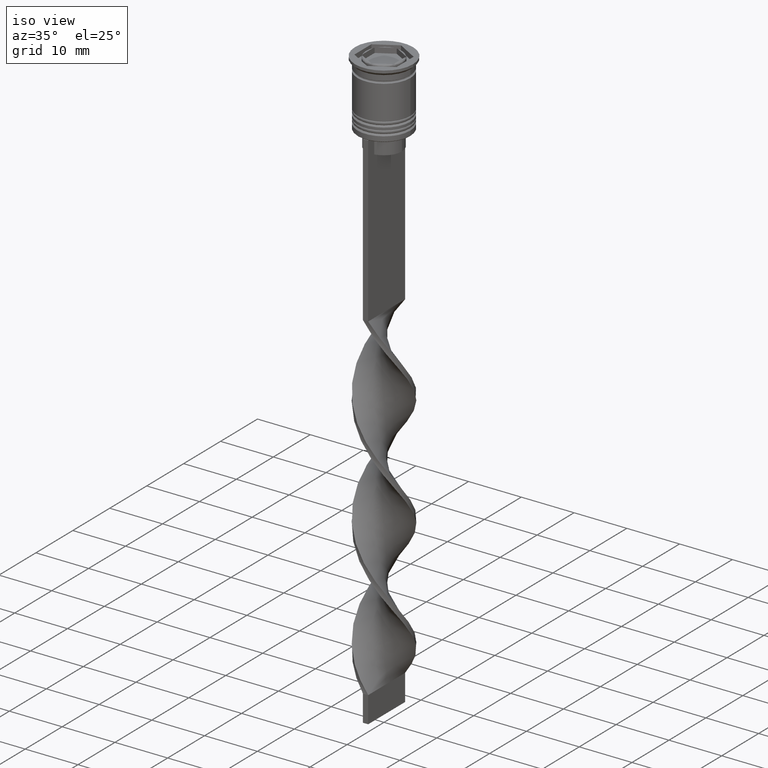
[diagram: clean part render]
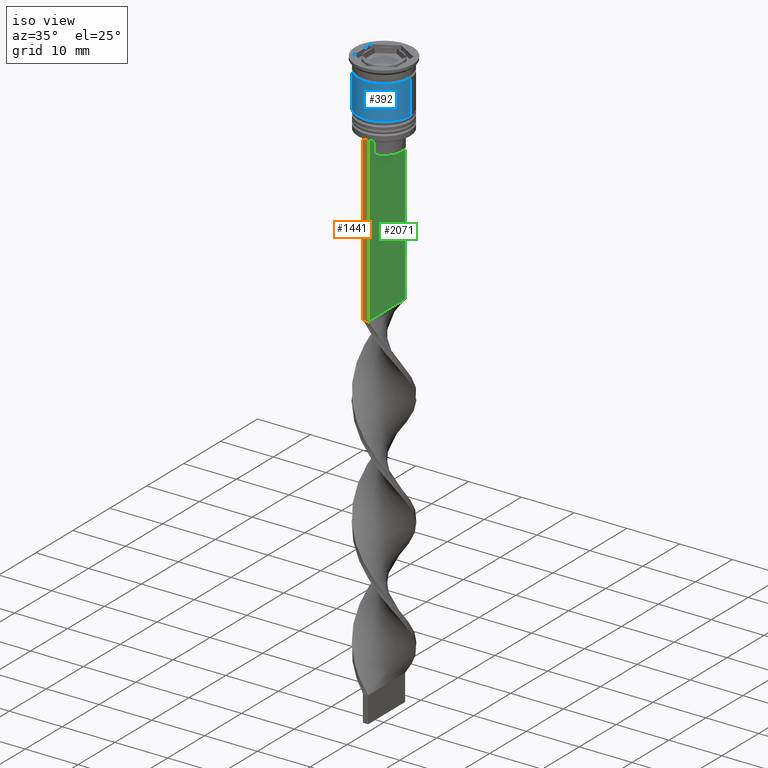
[diagram: same view with three faces highlighted in distinct colors, each labeled with its STEP entity id]
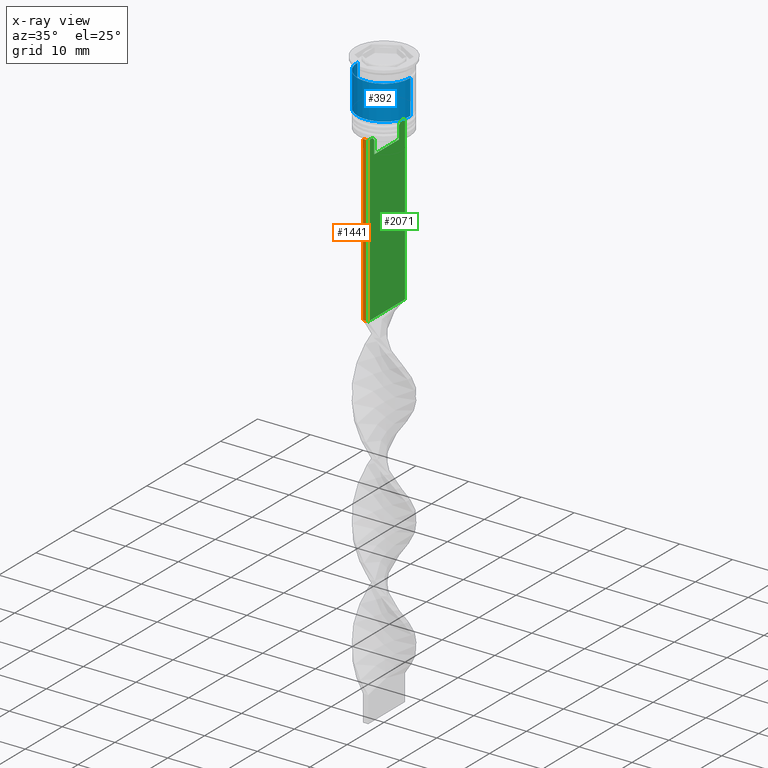
[diagram: x-ray of the same camera — body ghosted, the three highlighted faces saturated]
A machine part, iso view with three faces highlighted in distinct colors.
The next image is the same camera in x-ray (body ghosted, the three faces saturated) — at least one of them is partly hidden behind the body in this view.
Their STEP definitions:

[orange] entity #1441 — the highlighted planar face has unit normal (0, -1, -0).
#42 = CARTESIAN_POINT ( 'NONE',  ( 0.5000000000000000000, -4.999999999999999112, -2.450124378879110054 ) ) ;
#98 = EDGE_CURVE ( 'NONE', #2363, #3234, #1013, .T. ) ;
#259 = EDGE_LOOP ( 'NONE', ( #622, #3341, #629, #1169 ) ) ;
#306 = CARTESIAN_POINT ( 'NONE',  ( -0.5000000000000000000, -4.999999999999999112, -2.450124378879110054 ) ) ;
#331 = PLANE ( 'NONE',  #3411 ) ;
#482 = VECTOR ( 'NONE', #898, 1000.000000000000000 ) ;
#622 = ORIENTED_EDGE ( 'NONE', *, *, #1909, .F. ) ;
#629 = ORIENTED_EDGE ( 'NONE', *, *, #98, .F. ) ;
#674 = CARTESIAN_POINT ( 'NONE',  ( 0.5000000000000000000, -4.999999999999999112, -12.50000000000000000 ) ) ;
#691 = DIRECTION ( 'NONE',  ( 1.000000000000000000, 0.000000000000000000, 0.000000000000000000 ) ) ;
#859 = LINE ( 'NONE', #306, #2648 ) ;
#898 = DIRECTION ( 'NONE',  ( 0.000000000000000000, 0.000000000000000000, -1.000000000000000000 ) ) ;
#1013 = LINE ( 'NONE', #2741, #1138 ) ;
#1138 = VECTOR ( 'NONE', #1904, 1000.000000000000000 ) ;
#1169 = ORIENTED_EDGE ( 'NONE', *, *, #1791, .F. ) ;
#1441 = ADVANCED_FACE ( 'NONE', ( #2896 ), #331, .T. ) ;
#1442 = VECTOR ( 'NONE', #691, 1000.000000000000000 ) ;
#1559 = CARTESIAN_POINT ( 'NONE',  ( 0.5000000000000000000, -4.999999999999999112, -12.50000000000000000 ) ) ;
#1723 = CARTESIAN_POINT ( 'NONE',  ( -0.5000000000000000000, -4.999999999999999112, -43.50000000000000000 ) ) ;
#1791 = EDGE_CURVE ( 'NONE', #1899, #2363, #3444, .T. ) ;
#1899 = VERTEX_POINT ( 'NONE', #674 ) ;
#1904 = DIRECTION ( 'NONE',  ( -1.000000000000000000, 0.000000000000000000, 0.000000000000000000 ) ) ;
#1909 = EDGE_CURVE ( 'NONE', #1928, #1899, #2140, .T. ) ;
#1928 = VERTEX_POINT ( 'NONE', #3622 ) ;
#2140 = LINE ( 'NONE', #1559, #1442 ) ;
#2331 = DIRECTION ( 'NONE',  ( 0.000000000000000000, 0.000000000000000000, -1.000000000000000000 ) ) ;
#2363 = VERTEX_POINT ( 'NONE', #3117 ) ;
#2387 = DIRECTION ( 'NONE',  ( 0.000000000000000000, -1.000000000000000000, -0.000000000000000000 ) ) ;
#2608 = DIRECTION ( 'NONE',  ( 0.000000000000000000, 0.000000000000000000, -1.000000000000000000 ) ) ;
#2648 = VECTOR ( 'NONE', #2608, 1000.000000000000000 ) ;
#2668 = CARTESIAN_POINT ( 'NONE',  ( 0.5000000000000000000, -4.999999999999999112, -2.450124378879110054 ) ) ;
#2741 = CARTESIAN_POINT ( 'NONE',  ( 0.5000000000000000000, -4.999999999999999112, -43.50000000000000000 ) ) ;
#2773 = EDGE_CURVE ( 'NONE', #1928, #3234, #859, .T. ) ;
#2896 = FACE_OUTER_BOUND ( 'NONE', #259, .T. ) ;
#3117 = CARTESIAN_POINT ( 'NONE',  ( 0.5000000000000000000, -4.999999999999999112, -43.50000000000000000 ) ) ;
#3234 = VERTEX_POINT ( 'NONE', #1723 ) ;
#3341 = ORIENTED_EDGE ( 'NONE', *, *, #2773, .T. ) ;
#3411 = AXIS2_PLACEMENT_3D ( 'NONE', #2668, #2387, #2331 ) ;
#3444 = LINE ( 'NONE', #42, #482 ) ;
#3622 = CARTESIAN_POINT ( 'NONE',  ( -0.5000000000000000000, -4.999999999999999112, -12.50000000000000000 ) ) ;

[blue] entity #392 — the highlighted cylindrical surface (edge-blend (fillet) strip) has radius 5 mm, axis along (-0, -0, 1).
#12 = AXIS2_PLACEMENT_3D ( 'NONE', #2106, #3277, #1931 ) ;
#90 = CARTESIAN_POINT ( 'NONE',  ( 5.000000000000000000, 0.000000000000000000, 0.000000000000000000 ) ) ;
#91 = LINE ( 'NONE', #356, #2523 ) ;
#244 = CYLINDRICAL_SURFACE ( 'NONE', #1069, 5.000000000000000000 ) ;
#356 = CARTESIAN_POINT ( 'NONE',  ( -5.000000000000000000, 6.123233995736766282E-16, 0.000000000000000000 ) ) ;
#376 = EDGE_LOOP ( 'NONE', ( #2467, #3274, #771, #2546 ) ) ;
#392 = ADVANCED_FACE ( 'NONE', ( #2885 ), #244, .T. ) ;
#684 = VERTEX_POINT ( 'NONE', #1416 ) ;
#703 = VERTEX_POINT ( 'NONE', #1125 ) ;
#722 = AXIS2_PLACEMENT_3D ( 'NONE', #2985, #2667, #1253 ) ;
#771 = ORIENTED_EDGE ( 'NONE', *, *, #3548, .T. ) ;
#1046 = CARTESIAN_POINT ( 'NONE',  ( 5.000000000000000888, 0.000000000000000000, -9.000000000000001776 ) ) ;
#1069 = AXIS2_PLACEMENT_3D ( 'NONE', #1382, #2532, #3199 ) ;
#1125 = CARTESIAN_POINT ( 'NONE',  ( 4.999999999999999112, 0.000000000000000000, -2.500000000000000000 ) ) ;
#1253 = DIRECTION ( 'NONE',  ( 1.000000000000000000, 0.000000000000000000, 0.000000000000000000 ) ) ;
#1268 = VECTOR ( 'NONE', #3532, 1000.000000000000000 ) ;
#1321 = CIRCLE ( 'NONE', #722, 4.999999999999999112 ) ;
#1382 = CARTESIAN_POINT ( 'NONE',  ( 0.000000000000000000, 0.000000000000000000, 0.000000000000000000 ) ) ;
#1394 = CARTESIAN_POINT ( 'NONE',  ( -4.999999999999999112, 6.123233995736766282E-16, -2.500000000000000000 ) ) ;
#1416 = CARTESIAN_POINT ( 'NONE',  ( -5.000000000000000888, 6.123233995736767268E-16, -9.000000000000001776 ) ) ;
#1600 = VERTEX_POINT ( 'NONE', #1046 ) ;
#1931 = DIRECTION ( 'NONE',  ( 1.000000000000000000, 0.000000000000000000, 0.000000000000000000 ) ) ;
#1951 = EDGE_CURVE ( 'NONE', #684, #1600, #3297, .T. ) ;
#2093 = EDGE_CURVE ( 'NONE', #684, #2366, #91, .T. ) ;
#2096 = LINE ( 'NONE', #90, #1268 ) ;
#2106 = CARTESIAN_POINT ( 'NONE',  ( 0.000000000000000000, 0.000000000000000000, -9.000000000000001776 ) ) ;
#2366 = VERTEX_POINT ( 'NONE', #1394 ) ;
#2467 = ORIENTED_EDGE ( 'NONE', *, *, #2093, .F. ) ;
#2523 = VECTOR ( 'NONE', #2691, 1000.000000000000000 ) ;
#2532 = DIRECTION ( 'NONE',  ( -0.000000000000000000, -0.000000000000000000, 1.000000000000000000 ) ) ;
#2546 = ORIENTED_EDGE ( 'NONE', *, *, #2932, .F. ) ;
#2667 = DIRECTION ( 'NONE',  ( -0.000000000000000000, -0.000000000000000000, 1.000000000000000000 ) ) ;
#2691 = DIRECTION ( 'NONE',  ( -0.000000000000000000, -0.000000000000000000, 1.000000000000000000 ) ) ;
#2885 = FACE_OUTER_BOUND ( 'NONE', #376, .T. ) ;
#2932 = EDGE_CURVE ( 'NONE', #2366, #703, #1321, .T. ) ;
#2985 = CARTESIAN_POINT ( 'NONE',  ( 0.000000000000000000, 0.000000000000000000, -2.500000000000000000 ) ) ;
#3199 = DIRECTION ( 'NONE',  ( 1.000000000000000000, 0.000000000000000000, 0.000000000000000000 ) ) ;
#3274 = ORIENTED_EDGE ( 'NONE', *, *, #1951, .T. ) ;
#3277 = DIRECTION ( 'NONE',  ( -0.000000000000000000, -0.000000000000000000, 1.000000000000000000 ) ) ;
#3297 = CIRCLE ( 'NONE', #12, 5.000000000000000888 ) ;
#3532 = DIRECTION ( 'NONE',  ( -0.000000000000000000, -0.000000000000000000, 1.000000000000000000 ) ) ;
#3548 = EDGE_CURVE ( 'NONE', #1600, #703, #2096, .T. ) ;

[green] entity #2071 — the highlighted planar face has unit normal (-1, 0, 0).
#26 = EDGE_CURVE ( 'NONE', #2175, #753, #1816, .T. ) ;
#42 = CARTESIAN_POINT ( 'NONE',  ( 0.5000000000000000000, -4.999999999999999112, -2.450124378879110054 ) ) ;
#44 = CARTESIAN_POINT ( 'NONE',  ( 0.5000000000000000000, 3.363034344160045208, -13.00000000000000178 ) ) ;
#62 = DIRECTION ( 'NONE',  ( 0.000000000000000000, -1.000000000000000000, 0.000000000000000000 ) ) ;
#122 = VECTOR ( 'NONE', #216, 1000.000000000000000 ) ;
#216 = DIRECTION ( 'NONE',  ( 0.000000000000000000, -1.000000000000000000, 0.000000000000000000 ) ) ;
#218 = CARTESIAN_POINT ( 'NONE',  ( 0.5000000000000000000, -3.363034344160045652, -15.50000000000000000 ) ) ;
#220 = VERTEX_POINT ( 'NONE', #1286 ) ;
#232 = ORIENTED_EDGE ( 'NONE', *, *, #2731, .T. ) ;
#236 = CARTESIAN_POINT ( 'NONE',  ( 0.5000000000000000000, -4.999999999999999112, -12.50000000000000000 ) ) ;
#251 = VECTOR ( 'NONE', #1517, 1000.000000000000000 ) ;
#314 = CARTESIAN_POINT ( 'NONE',  ( 0.5000000000000000000, 5.000000000000000888, -12.50000000000000000 ) ) ;
#333 = LINE ( 'NONE', #2037, #3177 ) ;
#349 = CARTESIAN_POINT ( 'NONE',  ( 0.5000000000000000000, -4.999999999999999112, -12.50000000000000000 ) ) ;
#360 = VERTEX_POINT ( 'NONE', #2266 ) ;
#369 = VECTOR ( 'NONE', #62, 1000.000000000000000 ) ;
#404 = CARTESIAN_POINT ( 'NONE',  ( 0.5000000000000000000, 3.363034344160045208, -13.00000000000000178 ) ) ;
#425 = ORIENTED_EDGE ( 'NONE', *, *, #2112, .T. ) ;
#432 = ORIENTED_EDGE ( 'NONE', *, *, #3028, .T. ) ;
#482 = VECTOR ( 'NONE', #898, 1000.000000000000000 ) ;
#545 = CARTESIAN_POINT ( 'NONE',  ( 0.5000000000000000000, 5.000000000000000888, -2.450124378879110054 ) ) ;
#612 = VERTEX_POINT ( 'NONE', #2747 ) ;
#662 = FACE_OUTER_BOUND ( 'NONE', #2335, .T. ) ;
#667 = VECTOR ( 'NONE', #1485, 1000.000000000000000 ) ;
#674 = CARTESIAN_POINT ( 'NONE',  ( 0.5000000000000000000, -4.999999999999999112, -12.50000000000000000 ) ) ;
#692 = CARTESIAN_POINT ( 'NONE',  ( 0.5000000000000000000, -4.999999999999999112, -12.50000000000000000 ) ) ;
#746 = EDGE_CURVE ( 'NONE', #3539, #1315, #758, .T. ) ;
#753 = VERTEX_POINT ( 'NONE', #2359 ) ;
#758 = B_SPLINE_CURVE_WITH_KNOTS ( 'NONE', 3,
 ( #3514, #943, #2671, #404 ),
 .UNSPECIFIED., .F., .F.,
 ( 4, 4 ),
 ( 0.006644825462451552783, 0.007355321358912435097 ),
 .UNSPECIFIED. ) ;
#898 = DIRECTION ( 'NONE',  ( 0.000000000000000000, 0.000000000000000000, -1.000000000000000000 ) ) ;
#922 = DIRECTION ( 'NONE',  ( 0.000000000000000000, 0.000000000000000000, -1.000000000000000000 ) ) ;
#928 = PLANE ( 'NONE',  #2163 ) ;
#943 = CARTESIAN_POINT ( 'NONE',  ( 0.5000000000000000000, 3.699657965831574913, -12.66677026074361301 ) ) ;
#983 = DIRECTION ( 'NONE',  ( 0.000000000000000000, 0.000000000000000000, 1.000000000000000000 ) ) ;
#998 = CARTESIAN_POINT ( 'NONE',  ( 0.5000000000000000000, 3.867815921162742754, -12.50000000000000000 ) ) ;
#1179 = DIRECTION ( 'NONE',  ( -0.000000000000000000, -0.000000000000000000, 1.000000000000000000 ) ) ;
#1196 = VERTEX_POINT ( 'NONE', #1944 ) ;
#1237 = EDGE_CURVE ( 'NONE', #220, #1899, #2852, .T. ) ;
#1263 = LINE ( 'NONE', #2938, #251 ) ;
#1266 = VECTOR ( 'NONE', #1727, 1000.000000000000000 ) ;
#1286 = CARTESIAN_POINT ( 'NONE',  ( 0.5000000000000000000, -4.874423042781575788, -12.50000000000000000 ) ) ;
#1287 = DIRECTION ( 'NONE',  ( 0.000000000000000000, 1.000000000000000000, 0.000000000000000000 ) ) ;
#1299 = EDGE_CURVE ( 'NONE', #3440, #360, #3115, .T. ) ;
#1315 = VERTEX_POINT ( 'NONE', #44 ) ;
#1396 = ORIENTED_EDGE ( 'NONE', *, *, #2220, .T. ) ;
#1467 = EDGE_CURVE ( 'NONE', #3440, #612, #3493, .T. ) ;
#1485 = DIRECTION ( 'NONE',  ( 0.000000000000000000, -1.000000000000000000, 0.000000000000000000 ) ) ;
#1517 = DIRECTION ( 'NONE',  ( 0.000000000000000000, -1.000000000000000000, 0.000000000000000000 ) ) ;
#1529 = LINE ( 'NONE', #692, #667 ) ;
#1605 = CARTESIAN_POINT ( 'NONE',  ( 0.5000000000000000000, -3.363034344160045208, -13.00000000000000178 ) ) ;
#1727 = DIRECTION ( 'NONE',  ( 0.000000000000000000, 0.000000000000000000, -1.000000000000000000 ) ) ;
#1760 = DIRECTION ( 'NONE',  ( -1.000000000000000000, 0.000000000000000000, 0.000000000000000000 ) ) ;
#1791 = EDGE_CURVE ( 'NONE', #1899, #2363, #3444, .T. ) ;
#1809 = LINE ( 'NONE', #2952, #3422 ) ;
#1813 = VECTOR ( 'NONE', #1179, 1000.000000000000000 ) ;
#1816 = LINE ( 'NONE', #3228, #1813 ) ;
#1855 = CARTESIAN_POINT ( 'NONE',  ( 0.5000000000000000000, 3.363034344160045652, -15.50000000000000000 ) ) ;
#1899 = VERTEX_POINT ( 'NONE', #674 ) ;
#1926 = CARTESIAN_POINT ( 'NONE',  ( 0.5000000000000000000, -3.531412985305424801, -12.83345201382502765 ) ) ;
#1944 = CARTESIAN_POINT ( 'NONE',  ( 0.5000000000000000000, -3.867815921162742754, -12.50000000000000000 ) ) ;
#2037 = CARTESIAN_POINT ( 'NONE',  ( 0.5000000000000000000, 3.399999999999998135, -15.50000000000000000 ) ) ;
#2060 = DIRECTION ( 'NONE',  ( 0.000000000000000000, -1.000000000000000000, 0.000000000000000000 ) ) ;
#2071 = ADVANCED_FACE ( 'NONE', ( #662 ), #928, .F. ) ;
#2112 = EDGE_CURVE ( 'NONE', #1196, #220, #1263, .T. ) ;
#2163 = AXIS2_PLACEMENT_3D ( 'NONE', #2975, #1760, #983 ) ;
#2175 = VERTEX_POINT ( 'NONE', #218 ) ;
#2220 = EDGE_CURVE ( 'NONE', #753, #1196, #3390, .T. ) ;
#2266 = CARTESIAN_POINT ( 'NONE',  ( 0.5000000000000000000, 5.000000000000000888, -43.50000000000000000 ) ) ;
#2335 = EDGE_LOOP ( 'NONE', ( #2619, #3448, #232, #3103, #3292, #1396, #425, #2432, #2638, #432, #3018, #3517 ) ) ;
#2359 = CARTESIAN_POINT ( 'NONE',  ( 0.5000000000000000000, -3.363034344160045208, -13.00000000000000178 ) ) ;
#2363 = VERTEX_POINT ( 'NONE', #3117 ) ;
#2432 = ORIENTED_EDGE ( 'NONE', *, *, #1237, .T. ) ;
#2496 = EDGE_CURVE ( 'NONE', #3636, #2175, #333, .T. ) ;
#2500 = CARTESIAN_POINT ( 'NONE',  ( 0.5000000000000000000, -3.867815921162742754, -12.50000000000000000 ) ) ;
#2619 = ORIENTED_EDGE ( 'NONE', *, *, #2911, .T. ) ;
#2638 = ORIENTED_EDGE ( 'NONE', *, *, #1791, .T. ) ;
#2671 = CARTESIAN_POINT ( 'NONE',  ( 0.5000000000000000000, 3.531412678228260216, -12.83345231756357840 ) ) ;
#2731 = EDGE_CURVE ( 'NONE', #1315, #3636, #3113, .T. ) ;
#2745 = CARTESIAN_POINT ( 'NONE',  ( 0.5000000000000000000, -3.699658232838647365, -12.66676999593996555 ) ) ;
#2747 = CARTESIAN_POINT ( 'NONE',  ( 0.5000000000000000000, 4.874423042781575788, -12.50000000000000000 ) ) ;
#2852 = LINE ( 'NONE', #236, #122 ) ;
#2911 = EDGE_CURVE ( 'NONE', #612, #3539, #1529, .T. ) ;
#2938 = CARTESIAN_POINT ( 'NONE',  ( 0.5000000000000000000, -4.999999999999999112, -12.50000000000000000 ) ) ;
#2952 = CARTESIAN_POINT ( 'NONE',  ( 0.5000000000000000000, -4.999999999999999112, -43.50000000000000000 ) ) ;
#2975 = CARTESIAN_POINT ( 'NONE',  ( 0.5000000000000000000, -4.999999999999999112, -2.450124378879110054 ) ) ;
#3018 = ORIENTED_EDGE ( 'NONE', *, *, #1299, .F. ) ;
#3028 = EDGE_CURVE ( 'NONE', #2363, #360, #1809, .T. ) ;
#3103 = ORIENTED_EDGE ( 'NONE', *, *, #2496, .T. ) ;
#3113 = LINE ( 'NONE', #3374, #1266 ) ;
#3115 = LINE ( 'NONE', #545, #3349 ) ;
#3117 = CARTESIAN_POINT ( 'NONE',  ( 0.5000000000000000000, -4.999999999999999112, -43.50000000000000000 ) ) ;
#3177 = VECTOR ( 'NONE', #2060, 1000.000000000000000 ) ;
#3228 = CARTESIAN_POINT ( 'NONE',  ( 0.5000000000000000000, -3.363034344160045208, 0.000000000000000000 ) ) ;
#3292 = ORIENTED_EDGE ( 'NONE', *, *, #26, .T. ) ;
#3349 = VECTOR ( 'NONE', #922, 1000.000000000000000 ) ;
#3374 = CARTESIAN_POINT ( 'NONE',  ( 0.5000000000000000000, 3.363034344160045208, 0.000000000000000000 ) ) ;
#3390 = B_SPLINE_CURVE_WITH_KNOTS ( 'NONE', 3,
 ( #1605, #1926, #2745, #2500 ),
 .UNSPECIFIED., .F., .F.,
 ( 4, 4 ),
 ( 0.01632394437298965648, 0.01703543518243618576 ),
 .UNSPECIFIED. ) ;
#3422 = VECTOR ( 'NONE', #1287, 1000.000000000000000 ) ;
#3440 = VERTEX_POINT ( 'NONE', #314 ) ;
#3444 = LINE ( 'NONE', #42, #482 ) ;
#3448 = ORIENTED_EDGE ( 'NONE', *, *, #746, .T. ) ;
#3493 = LINE ( 'NONE', #349, #369 ) ;
#3514 = CARTESIAN_POINT ( 'NONE',  ( 0.5000000000000000000, 3.867815921162742754, -12.50000000000000000 ) ) ;
#3517 = ORIENTED_EDGE ( 'NONE', *, *, #1467, .T. ) ;
#3539 = VERTEX_POINT ( 'NONE', #998 ) ;
#3636 = VERTEX_POINT ( 'NONE', #1855 ) ;